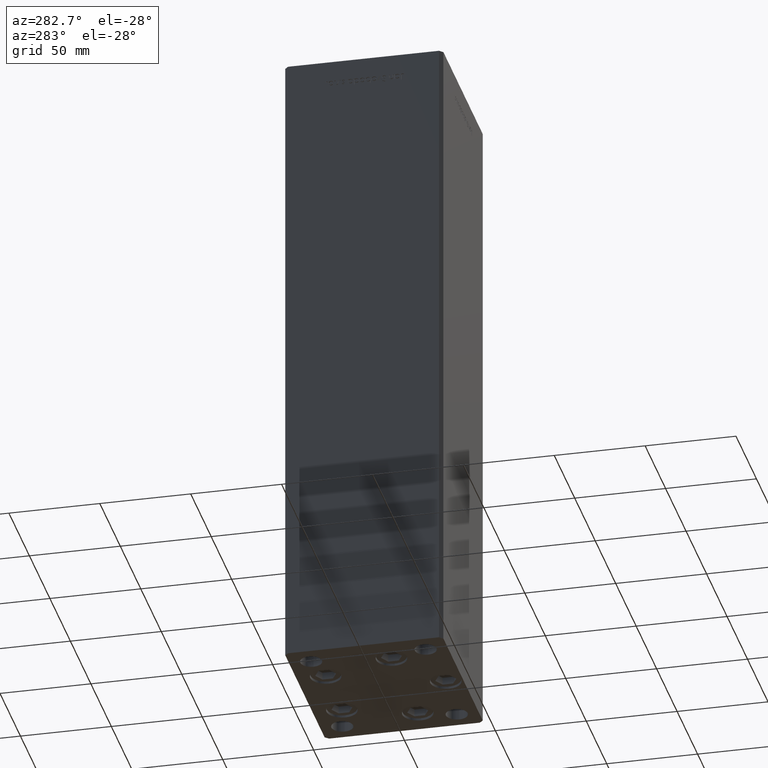
[diagram: clean part render]
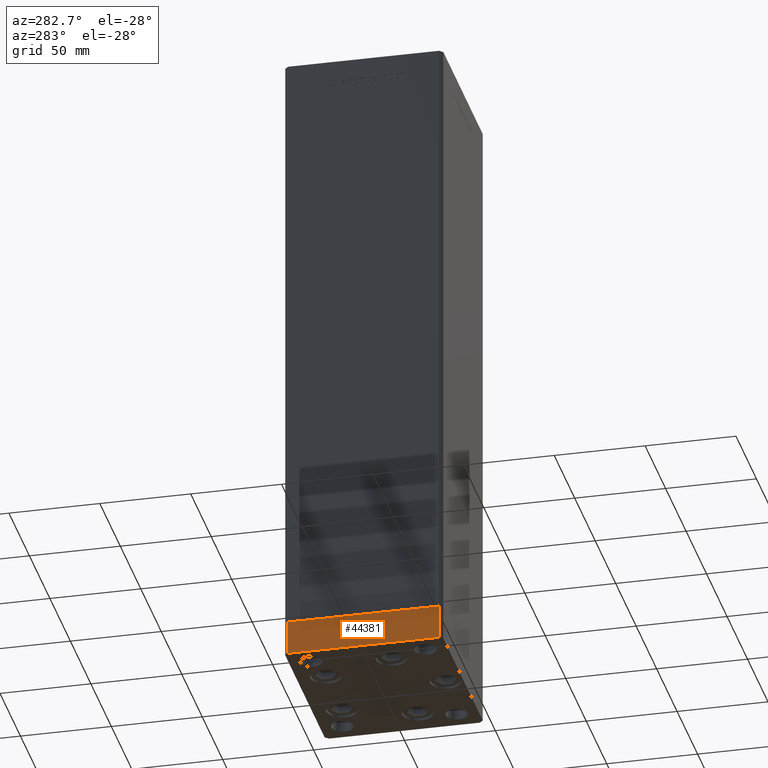
[diagram: same view with one face highlighted and labeled with its STEP entity id]
A machine part, auxiliary view. The second image highlights one B-rep face of the part: STEP entity #44381.
In plain terms, the highlighted planar face has unit normal (-1, 0, 0).
Its self-contained STEP definition (entity closure, byte-faithful):
#1009 = LINE ( 'NONE', #36134, #35513 ) ;
#1527 = VECTOR ( 'NONE', #38304, 1000.000000000000000 ) ;
#3771 = DIRECTION ( 'NONE',  ( -1.003213576468515193E-15, 1.000000000000000000, 0.000000000000000000 ) ) ;
#4797 = ORIENTED_EDGE ( 'NONE', *, *, #22326, .F. ) ;
#5038 = CARTESIAN_POINT ( 'NONE',  ( 50.00000000000000000, -41.49999999999999289, -19.00000000000000000 ) ) ;
#5609 = EDGE_CURVE ( 'NONE', #48206, #5738, #30564, .T. ) ;
#5619 = ORIENTED_EDGE ( 'NONE', *, *, #8908, .F. ) ;
#5738 = VERTEX_POINT ( 'NONE', #43455 ) ;
#6016 = CARTESIAN_POINT ( 'NONE',  ( 49.99999999999992184, 41.49999999999998579, -19.00000000000000000 ) ) ;
#7647 = EDGE_CURVE ( 'NONE', #10906, #48206, #30122, .T. ) ;
#8908 = EDGE_CURVE ( 'NONE', #10906, #39973, #12594, .T. ) ;
#10906 = VERTEX_POINT ( 'NONE', #30759 ) ;
#12594 = LINE ( 'NONE', #12856, #31085 ) ;
#12645 = DIRECTION ( 'NONE',  ( -1.003213576468515193E-15, 1.000000000000000000, 0.000000000000000000 ) ) ;
#12856 = CARTESIAN_POINT ( 'NONE',  ( 50.00000000000000000, -41.49999999999999289, -19.00000000000000000 ) ) ;
#13191 = CARTESIAN_POINT ( 'NONE',  ( 49.99999999999992184, 41.49999999999998579, -19.00000000000000000 ) ) ;
#18863 = FACE_OUTER_BOUND ( 'NONE', #30031, .T. ) ;
#22121 = DIRECTION ( 'NONE',  ( 0.000000000000000000, 0.000000000000000000, 1.000000000000000000 ) ) ;
#22326 = EDGE_CURVE ( 'NONE', #39973, #5738, #1009, .T. ) ;
#23857 = CARTESIAN_POINT ( 'NONE',  ( 50.00000000000000000, -41.49999999999999289, -19.00000000000000000 ) ) ;
#26456 = AXIS2_PLACEMENT_3D ( 'NONE', #23857, #51027, #3771 ) ;
#30031 = EDGE_LOOP ( 'NONE', ( #4797, #5619, #35856, #38113 ) ) ;
#30122 = LINE ( 'NONE', #5038, #1527 ) ;
#30564 = LINE ( 'NONE', #6016, #43611 ) ;
#30759 = CARTESIAN_POINT ( 'NONE',  ( 50.00000000000000000, -41.49999999999999289, -19.00000000000000000 ) ) ;
#31085 = VECTOR ( 'NONE', #48718, 1000.000000000000000 ) ;
#31266 = PLANE ( 'NONE',  #26456 ) ;
#35513 = VECTOR ( 'NONE', #12645, 1000.000000000000000 ) ;
#35856 = ORIENTED_EDGE ( 'NONE', *, *, #7647, .T. ) ;
#36134 = CARTESIAN_POINT ( 'NONE',  ( 50.00000000000000000, -41.49999999999999289, 0.000000000000000000 ) ) ;
#38113 = ORIENTED_EDGE ( 'NONE', *, *, #5609, .T. ) ;
#38304 = DIRECTION ( 'NONE',  ( -1.003213576468515193E-15, 1.000000000000000000, 0.000000000000000000 ) ) ;
#39973 = VERTEX_POINT ( 'NONE', #48507 ) ;
#43455 = CARTESIAN_POINT ( 'NONE',  ( 49.99999999999992184, 41.49999999999998579, 0.000000000000000000 ) ) ;
#43611 = VECTOR ( 'NONE', #22121, 1000.000000000000000 ) ;
#44381 = ADVANCED_FACE ( 'NONE', ( #18863 ), #31266, .T. ) ;
#48206 = VERTEX_POINT ( 'NONE', #13191 ) ;
#48507 = CARTESIAN_POINT ( 'NONE',  ( 50.00000000000000000, -41.49999999999999289, 0.000000000000000000 ) ) ;
#48718 = DIRECTION ( 'NONE',  ( 0.000000000000000000, 0.000000000000000000, 1.000000000000000000 ) ) ;
#51027 = DIRECTION ( 'NONE',  ( 1.000000000000000000, 1.003213576468515193E-15, -0.000000000000000000 ) ) ;